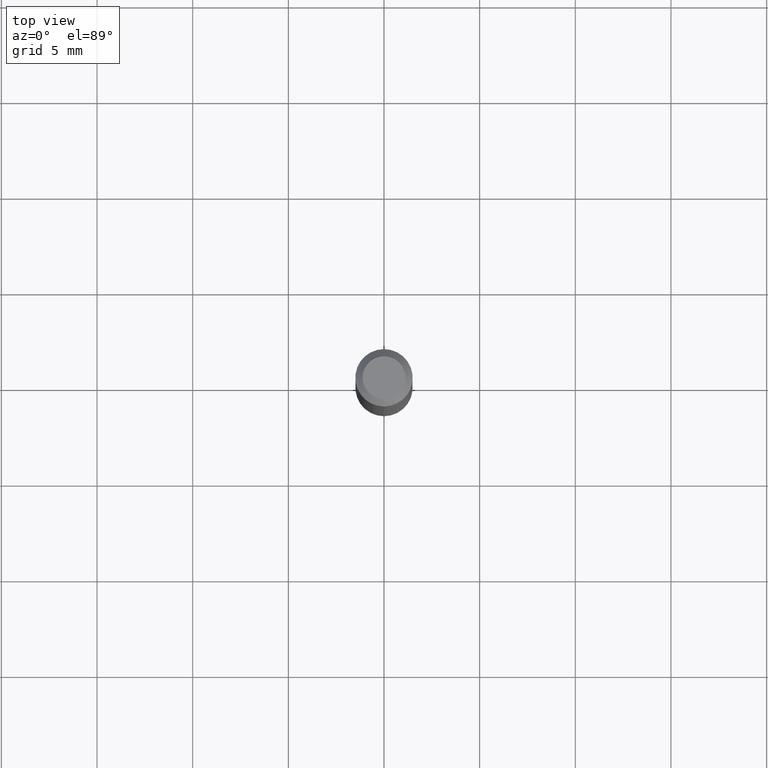
[diagram: clean part render]
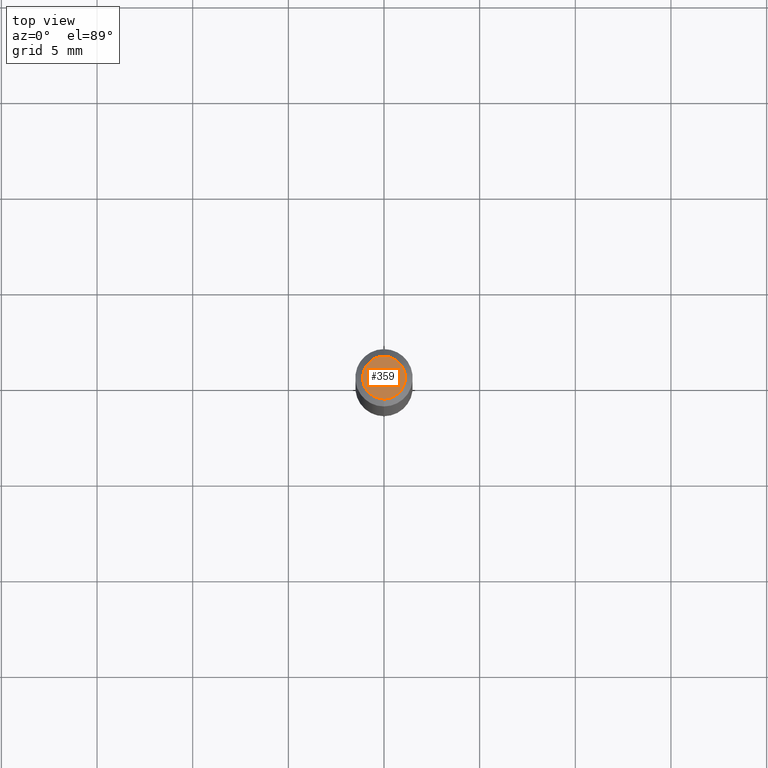
[diagram: same view with one face highlighted and labeled with its STEP entity id]
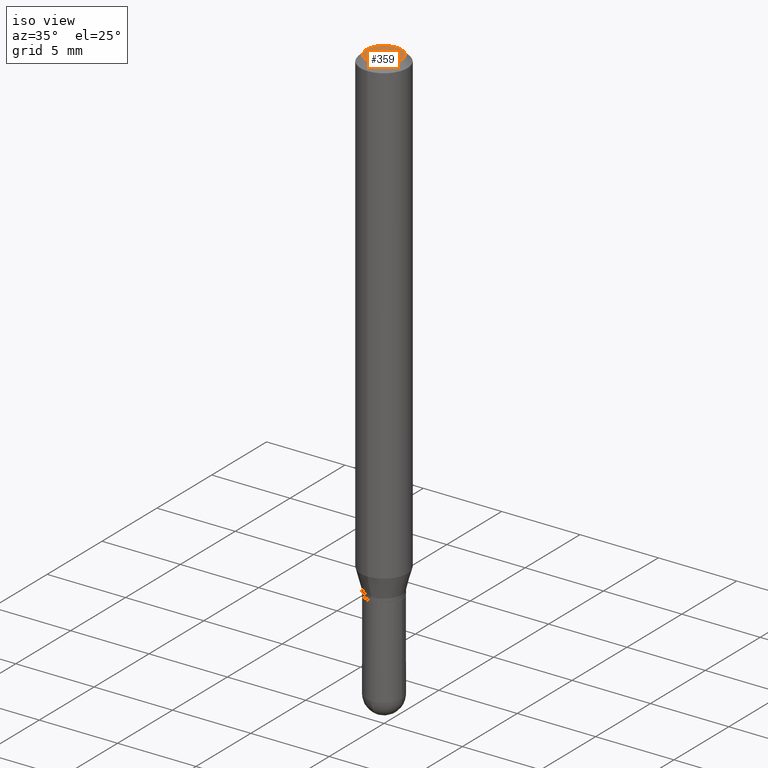
[diagram: same view with one face highlighted and labeled with its STEP entity id]
A machine part, top view. The second image highlights one B-rep face of the part: STEP entity #359.
A second angle (iso view) of the same face is appended — the face is thin or edge-on in the first view.
In plain terms, the highlighted planar face has unit normal (0, -0, -1).
Its self-contained STEP definition (entity closure, byte-faithful):
#3 = CARTESIAN_POINT ( 'NONE',  ( -3.536586717851222218E-16, -0.04404999999999999888, 1.299464798432338031E-16 ) ) ;
#8 = AXIS2_PLACEMENT_3D ( 'NONE', #100, #260, #132 ) ;
#47 = CARTESIAN_POINT ( 'NONE',  ( 3.599717260347271507E-16, 0.04404999999999999888, -1.776619958574267204E-16 ) ) ;
#51 = DIRECTION ( 'NONE',  ( 6.982962677686265922E-15, 1.000000000000000000, -3.491583152107383980E-15 ) ) ;
#98 = FACE_OUTER_BOUND ( 'NONE', #498, .T. ) ;
#100 = CARTESIAN_POINT ( 'NONE',  ( 5.834170680494128639E-46, -8.330134590463305896E-32, -2.385775800709646480E-17 ) ) ;
#117 = ORIENTED_EDGE ( 'NONE', *, *, #403, .T. ) ;
#132 = DIRECTION ( 'NONE',  ( -6.982962677686265133E-15, -1.000000000000000000, 3.491583152107384375E-15 ) ) ;
#140 = VERTEX_POINT ( 'NONE', #3 ) ;
#148 = VERTEX_POINT ( 'NONE', #47 ) ;
#156 = DIRECTION ( 'NONE',  ( -6.982962677686265133E-15, -1.000000000000000000, 3.491583152107384375E-15 ) ) ;
#173 = CIRCLE ( 'NONE', #8, 0.04404999999999999888 ) ;
#177 = CARTESIAN_POINT ( 'NONE',  ( 3.075995059520799729E-16, 0.04404999999999999888, -1.657331168538785095E-16 ) ) ;
#194 = CIRCLE ( 'NONE', #207, 0.04404999999999999888 ) ;
#207 = AXIS2_PLACEMENT_3D ( 'NONE', #440, #319, #156 ) ;
#260 = DIRECTION ( 'NONE',  ( -2.445397710362709294E-29, 3.491583152107384375E-15, 1.000000000000000000 ) ) ;
#319 = DIRECTION ( 'NONE',  ( -2.445397710362709294E-29, 3.491583152107384375E-15, 1.000000000000000000 ) ) ;
#321 = ORIENTED_EDGE ( 'NONE', *, *, #332, .T. ) ;
#332 = EDGE_CURVE ( 'NONE', #140, #148, #173, .T. ) ;
#336 = DIRECTION ( 'NONE',  ( 2.445397710362709294E-29, -3.491583152107383980E-15, -1.000000000000000000 ) ) ;
#359 = ADVANCED_FACE ( 'NONE', ( #98 ), #417, .F. ) ;
#403 = EDGE_CURVE ( 'NONE', #148, #140, #194, .T. ) ;
#417 = PLANE ( 'NONE',  #499 ) ;
#440 = CARTESIAN_POINT ( 'NONE',  ( 5.834170680494128639E-46, -8.330134590463305896E-32, -2.385775800709646480E-17 ) ) ;
#498 = EDGE_LOOP ( 'NONE', ( #117, #321 ) ) ;
#499 = AXIS2_PLACEMENT_3D ( 'NONE', #177, #336, #51 ) ;